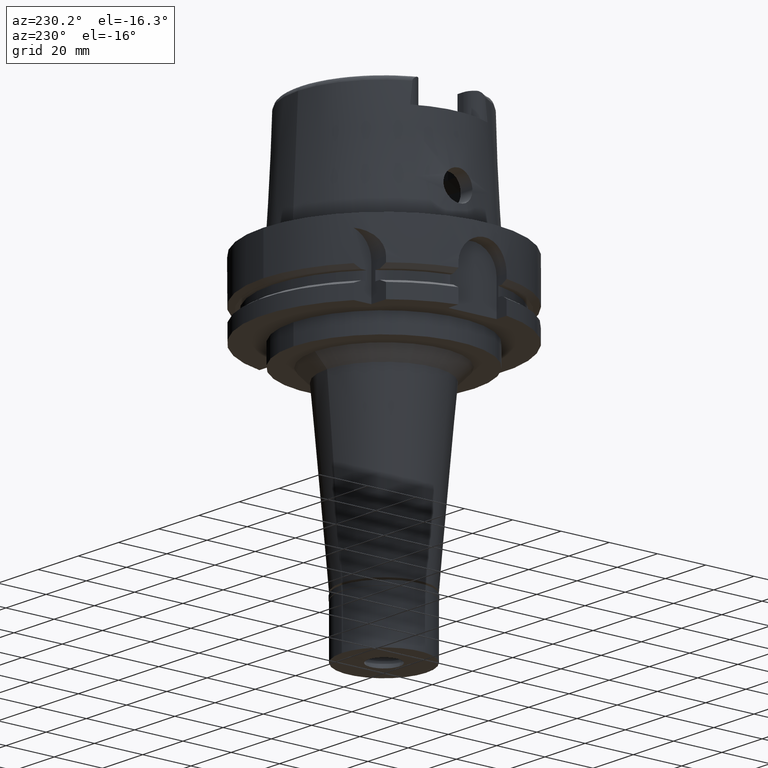
[diagram: clean part render]
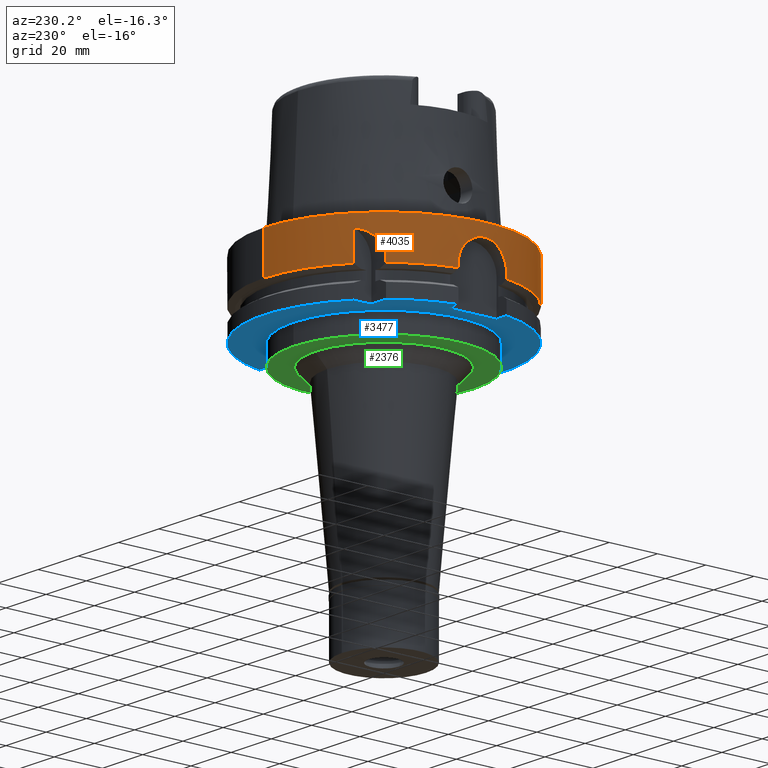
[diagram: same view with three faces highlighted in distinct colors, each labeled with its STEP entity id]
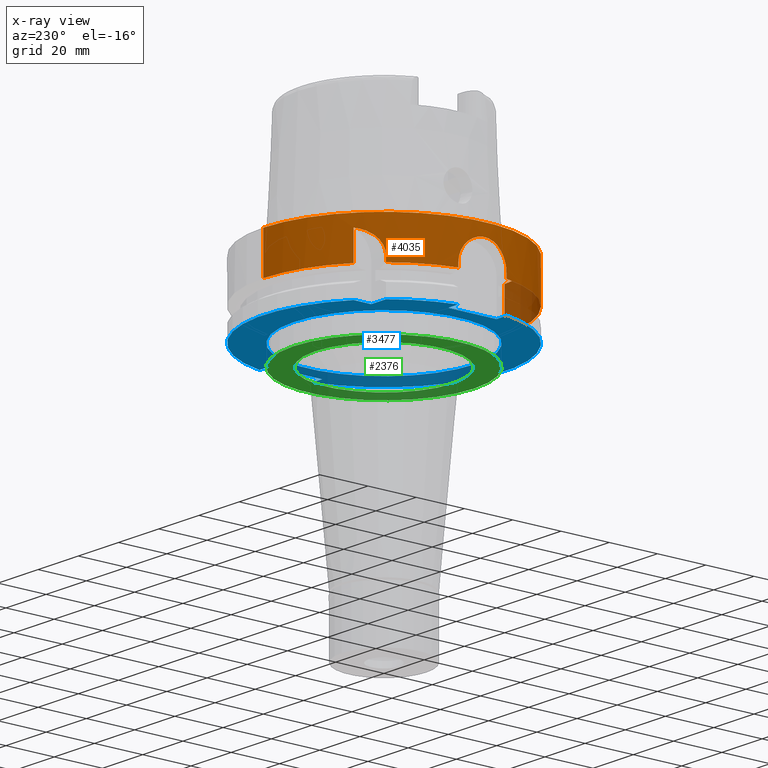
[diagram: x-ray of the same camera — body ghosted, the three highlighted faces saturated]
A machine part, auxiliary view with three faces highlighted in distinct colors.
The next image is the same camera in x-ray (body ghosted, the three faces saturated) — at least one of them is partly hidden behind the body in this view.
Their STEP definitions:

[orange] entity #4035 — the highlighted cylindrical surface (partial cylindrical patch) has radius 50 mm, axis along (0, 0, 1).
#30 = CARTESIAN_POINT ( 'NONE',  ( 0.0000000000000000000, 0.0000000000000000000, -137.2150000000000034 ) ) ;
#61 = CARTESIAN_POINT ( 'NONE',  ( -31.50000000000000000, 38.82975663071000128, -5.000000000003000267 ) ) ;
#62 = ORIENTED_EDGE ( 'NONE', *, *, #2796, .T. ) ;
#93 = CARTESIAN_POINT ( 'NONE',  ( -48.98979485565999425, -10.00000000000000000, -16.75240473580999989 ) ) ;
#100 = DIRECTION ( 'NONE',  ( -0.7765951326141738997, 0.6299999999999789102, 0.0000000000000000000 ) ) ;
#101 = CARTESIAN_POINT ( 'NONE',  ( -49.75276536321838705, -4.996883166516302488, -6.312905539887633033 ) ) ;
#103 = LINE ( 'NONE', #4772, #438 ) ;
#133 = DIRECTION ( 'NONE',  ( 0.0000000000000000000, 2.969006079282000197E-14, -1.000000000000000000 ) ) ;
#163 = CARTESIAN_POINT ( 'NONE',  ( -49.11376107037471428, -9.373077456005475483, -11.49978243499020358 ) ) ;
#214 = CARTESIAN_POINT ( 'NONE',  ( -49.94990226526126520, -2.260620444711866295, -5.253370164206655701 ) ) ;
#215 = CARTESIAN_POINT ( 'NONE',  ( -38.56426017670611373, 31.82455753698108936, -12.10452878447413383 ) ) ;
#249 = CARTESIAN_POINT ( 'NONE',  ( 0.0000000000000000000, 50.00000000000000000, 7.579122514774000189E-14 ) ) ;
#274 = CARTESIAN_POINT ( 'NONE',  ( -38.82975663071000128, 31.50000000000000000, -14.63689785921000031 ) ) ;
#297 = EDGE_CURVE ( 'NONE', #4911, #5580, #684, .T. ) ;
#313 = ORIENTED_EDGE ( 'NONE', *, *, #1362, .T. ) ;
#325 = CARTESIAN_POINT ( 'NONE',  ( -35.96048111892914534, 34.74089583048504437, -7.262033769481476497 ) ) ;
#366 = CARTESIAN_POINT ( 'NONE',  ( 0.0000000000000000000, -50.00000000000000000, 1.136868377215999875E-13 ) ) ;
#426 = CARTESIAN_POINT ( 'NONE',  ( -48.98979485565999425, 10.00000000000000000, -15.00000000000000000 ) ) ;
#438 = VECTOR ( 'NONE', #133, 1000.000000000000000 ) ;
#554 = CARTESIAN_POINT ( 'NONE',  ( -49.62992459583361438, -6.097301639180092714, -7.046390843773545853 ) ) ;
#581 = CARTESIAN_POINT ( 'NONE',  ( -49.80800700751090204, -4.419787306502763968, -6.005617750956002254 ) ) ;
#616 = CARTESIAN_POINT ( 'NONE',  ( -48.98979485565999425, -10.00000000000000000, -15.00000000000000000 ) ) ;
#638 = CARTESIAN_POINT ( 'NONE',  ( -49.63038059468560448, 6.093458218088183109, -7.043598467442531152 ) ) ;
#664 = CARTESIAN_POINT ( 'NONE',  ( -49.89840428057968325, -3.201080346780630581, -5.520506154842074409 ) ) ;
#665 = CARTESIAN_POINT ( 'NONE',  ( -37.41496551686595495, 33.16812239919718763, -9.106354249916776666 ) ) ;
#684 = B_SPLINE_CURVE_WITH_KNOTS ( 'NONE', 3,
 ( #2830, #1518, #3221, #1399, #2274, #5278, #3581, #3159, #4950, #3250, #2771, #4890, #638, #2801, #2709, #2396, #4515, #3672, #2364, #1006, #4543, #1911, #1462, #214, #4068, #664, #4002, #581, #101, #554, #3124, #3188, #5311, #1940, #4920, #163, #1066, #1035, #4490, #4859, #2304, #1822 ),
 .UNSPECIFIED., .F., .F.,
 ( 4, 2, 2, 2, 2, 2, 2, 2, 2, 2, 2, 2, 2, 2, 2, 2, 2, 2, 2, 2, 4 ),
 ( 0.0000000000000000000, 0.03124999999999997918, 0.06249999999999995837, 0.1250000000000000278, 0.1875000000000000833, 0.2500000000000001665, 0.3125000000000002220, 0.3437500000000002220, 0.3750000000000001665, 0.4375000000000001665, 0.5000000000000001110, 0.5625000000000001110, 0.5937500000000000000, 0.6250000000000000000, 0.6875000000000001110, 0.7500000000000001110, 0.8125000000000002220, 0.8750000000000003331, 0.9062500000000003331, 0.9375000000000002220, 1.000000000000000000 ),
 .UNSPECIFIED. ) ;
#731 = CARTESIAN_POINT ( 'NONE',  ( -31.50000000000000000, 38.82975663071000128, -5.000000000003000267 ) ) ;
#781 = LINE ( 'NONE', #731, #4612 ) ;
#809 = CIRCLE ( 'NONE', #4891, 50.00000000000000000 ) ;
#884 = CARTESIAN_POINT ( 'NONE',  ( -48.98979485565999425, 10.00000000000000000, -16.75240473580999989 ) ) ;
#899 = DIRECTION ( 'NONE',  ( 0.0000000000000000000, 1.000000000000000000, 0.0000000000000000000 ) ) ;
#939 = CARTESIAN_POINT ( 'NONE',  ( 0.0000000000000000000, -50.00000000000000000, -16.75240473580999989 ) ) ;
#969 = ORIENTED_EDGE ( 'NONE', *, *, #1765, .T. ) ;
#1006 = CARTESIAN_POINT ( 'NONE',  ( -49.98728101266075186, 1.296887978462247792, -5.063028898146675338 ) ) ;
#1035 = CARTESIAN_POINT ( 'NONE',  ( -49.05607990732512746, -9.670065645164941159, -12.43135436702997865 ) ) ;
#1055 = ORIENTED_EDGE ( 'NONE', *, *, #1324, .F. ) ;
#1066 = CARTESIAN_POINT ( 'NONE',  ( -49.09271152182150644, -9.482342584555794929, -11.80743786670822892 ) ) ;
#1067 = CARTESIAN_POINT ( 'NONE',  ( -36.69561725865232660, 33.96633515268312209, -8.038036006359032370 ) ) ;
#1096 = CARTESIAN_POINT ( 'NONE',  ( -38.82975663071001549, 31.49999999999999289, -14.13560493433362986 ) ) ;
#1120 = CARTESIAN_POINT ( 'NONE',  ( -38.66988779819151745, 31.69622724126822888, -12.64992304906581921 ) ) ;
#1168 = DIRECTION ( 'NONE',  ( 0.0000000000000000000, -1.000000000000000000, 0.0000000000000000000 ) ) ;
#1176 = CARTESIAN_POINT ( 'NONE',  ( -37.88599241306716436, 32.62939715868098745, -10.01319652236814939 ) ) ;
#1293 = DIRECTION ( 'NONE',  ( 3.166955095344913800E-07, 3.903884141554897929E-07, 0.9999999999998735456 ) ) ;
#1324 = EDGE_CURVE ( 'NONE', #5219, #4051, #2399, .T. ) ;
#1362 = EDGE_CURVE ( 'NONE', #3621, #4967, #2456, .T. ) ;
#1399 = CARTESIAN_POINT ( 'NONE',  ( -49.00578942432678531, 9.921372535861255670, -13.70665978530594131 ) ) ;
#1462 = CARTESIAN_POINT ( 'NONE',  ( -49.98727915147451739, -1.297878056431744698, -5.063039952322239579 ) ) ;
#1492 = CARTESIAN_POINT ( 'NONE',  ( -37.31212436315725256, 33.28370959263945394, -8.936645658776942724 ) ) ;
#1508 = VERTEX_POINT ( 'NONE', #884 ) ;
#1518 = CARTESIAN_POINT ( 'NONE',  ( -48.98979485566344039, 10.00000000000068212, -14.67491818838167283 ) ) ;
#1520 = CARTESIAN_POINT ( 'NONE',  ( -35.22322138154279969, 35.48702976941962817, -6.646516917485759457 ) ) ;
#1550 = CARTESIAN_POINT ( 'NONE',  ( -38.49419861245505103, 31.90919322588862883, -11.80539807600822755 ) ) ;
#1573 = CARTESIAN_POINT ( 'NONE',  ( -35.17537491079463052, 35.53442570974966941, -6.611162841490493491 ) ) ;
#1594 = CARTESIAN_POINT ( 'NONE',  ( -31.50000355958999876, 38.82975374304999860, -16.75239179145000179 ) ) ;
#1609 = VECTOR ( 'NONE', #1815, 1000.000000000000000 ) ;
#1663 = CIRCLE ( 'NONE', #3119, 50.00000000000000000 ) ;
#1764 = VECTOR ( 'NONE', #2547, 1000.000000000000000 ) ;
#1765 = EDGE_CURVE ( 'NONE', #4967, #2383, #1663, .T. ) ;
#1784 = CARTESIAN_POINT ( 'NONE',  ( -38.82975730067999365, 31.49999917413000361, -16.75240773889999701 ) ) ;
#1805 = ORIENTED_EDGE ( 'NONE', *, *, #2061, .T. ) ;
#1815 = DIRECTION ( 'NONE',  ( 3.933032361779000221E-13, -2.534170336197999844E-14, 1.000000000000000000 ) ) ;
#1822 = CARTESIAN_POINT ( 'NONE',  ( -48.98979485565999425, -10.00000000000000000, -15.00000000000000000 ) ) ;
#1877 = CARTESIAN_POINT ( 'NONE',  ( -48.98979485565999425, 10.00000000000000000, -15.00000000000000000 ) ) ;
#1911 = CARTESIAN_POINT ( 'NONE',  ( -49.99998093188954584, -0.6534672293763490458, -5.000092580354932537 ) ) ;
#1940 = CARTESIAN_POINT ( 'NONE',  ( -49.24031672210695376, -8.690732600166523270, -10.00953481943133205 ) ) ;
#1943 = CARTESIAN_POINT ( 'NONE',  ( -37.78098767313002782, 32.75102575319503018, -9.787062043289939339 ) ) ;
#1966 = EDGE_CURVE ( 'NONE', #4911, #1508, #2926, .T. ) ;
#2004 = CARTESIAN_POINT ( 'NONE',  ( -37.52307995457977086, 33.04593879523919497, -9.292993280808079959 ) ) ;
#2057 = CARTESIAN_POINT ( 'NONE',  ( -37.31942905272651956, 33.27551862753188061, -8.948474605492968692 ) ) ;
#2061 = EDGE_CURVE ( 'NONE', #2434, #2734, #5481, .T. ) ;
#2108 = ORIENTED_EDGE ( 'NONE', *, *, #4685, .F. ) ;
#2176 = FACE_OUTER_BOUND ( 'NONE', #2967, .T. ) ;
#2230 = CYLINDRICAL_SURFACE ( 'NONE', #3440, 50.00000000000000000 ) ;
#2274 = CARTESIAN_POINT ( 'NONE',  ( -49.01530539145205267, 9.874410711561390386, -13.38689759170601690 ) ) ;
#2304 = CARTESIAN_POINT ( 'NONE',  ( -48.98979485566344749, -10.00000000000062528, -14.35040057394133939 ) ) ;
#2314 = AXIS2_PLACEMENT_3D ( 'NONE', #3158, #4429, #100 ) ;
#2331 = CARTESIAN_POINT ( 'NONE',  ( 0.0000000000000000000, 0.0000000000000000000, -16.75240473580999989 ) ) ;
#2339 = VECTOR ( 'NONE', #1293, 1000.000000000000227 ) ;
#2364 = CARTESIAN_POINT ( 'NONE',  ( -49.93766217927382911, 2.576834790225643879, -5.315698971769330150 ) ) ;
#2383 = VERTEX_POINT ( 'NONE', #1594 ) ;
#2396 = CARTESIAN_POINT ( 'NONE',  ( -49.80599999653138354, 4.409852763244796137, -6.018768689394686788 ) ) ;
#2399 = B_SPLINE_CURVE_WITH_KNOTS ( 'NONE', 3,
 ( #274, #1096, #4517, #3224, #1120, #4095, #215, #3336, #1550, #5062, #5483, #3782, #4953, #1176, #1943, #2428, #2004, #665, #3675, #5400, #2057, #1492, #5427, #1067, #3282, #325, #2803, #2885, #3728, #1520, #1573, #2909, #3308, #3253, #4210, #4129, #5009 ),
 .UNSPECIFIED., .F., .F.,
 ( 4, 2, 2, 1, 1, 2, 2, 2, 2, 1, 1, 1, 2, 2, 2, 2, 1, 1, 1, 1, 2, 2, 4 ),
 ( 0.0000000000000000000, 0.1249999999999876765, 0.1874999999999813760, 0.2187499999999780731, 0.2343749999999762135, 0.2421874999999752698, 0.2499999999999743261, 0.3749999999999562572, 0.4374999999999474309, 0.4687499999999430456, 0.4843749999999407141, 0.4921874999999398814, 0.4960937499999398259, 0.4999999999999397704, 0.6249999999999515943, 0.6874999999999578115, 0.7187499999999613642, 0.7343749999999634737, 0.7421874999999649170, 0.7460937499999652500, 0.7480468749999651390, 0.7499999999999649170, 1.000000000000000000 ),
 .UNSPECIFIED. ) ;
#2428 = CARTESIAN_POINT ( 'NONE',  ( -37.61111081825762170, 32.94561128215605805, -9.456280317141889213 ) ) ;
#2434 = VERTEX_POINT ( 'NONE', #5143 ) ;
#2444 = CARTESIAN_POINT ( 'NONE',  ( 0.0000000000000000000, 50.00000000000000000, 7.579122514774000189E-14 ) ) ;
#2456 = LINE ( 'NONE', #249, #4206 ) ;
#2463 = DIRECTION ( 'NONE',  ( -3.028823767049074487E-07, -2.457085509676059455E-07, -0.9999999999999239497 ) ) ;
#2542 = ORIENTED_EDGE ( 'NONE', *, *, #5102, .F. ) ;
#2547 = DIRECTION ( 'NONE',  ( -4.014125812537999910E-13, -2.635537149646000036E-14, -1.000000000000000000 ) ) ;
#2549 = ORIENTED_EDGE ( 'NONE', *, *, #4141, .F. ) ;
#2709 = CARTESIAN_POINT ( 'NONE',  ( -49.75138076878725002, 4.988441504831846451, -6.326833838032925428 ) ) ;
#2734 = VERTEX_POINT ( 'NONE', #939 ) ;
#2771 = CARTESIAN_POINT ( 'NONE',  ( -49.43052048831371792, 7.539695048881876360, -8.397874753138664161 ) ) ;
#2796 = EDGE_CURVE ( 'NONE', #3504, #1508, #3232, .T. ) ;
#2801 = CARTESIAN_POINT ( 'NONE',  ( -49.72223162464445068, 5.270285573139288360, -6.495242745513932547 ) ) ;
#2803 = CARTESIAN_POINT ( 'NONE',  ( -35.65905782238287003, 35.04933054555394989, -6.994425028472744721 ) ) ;
#2830 = CARTESIAN_POINT ( 'NONE',  ( -48.98979485565999425, 10.00000000000000000, -15.00000000000000000 ) ) ;
#2857 = DIRECTION ( 'NONE',  ( 0.0000000000000000000, -2.969006079282000197E-14, -1.000000000000000000 ) ) ;
#2885 = CARTESIAN_POINT ( 'NONE',  ( -35.50466799637401039, 35.20597899941414965, -6.864031101713981009 ) ) ;
#2909 = CARTESIAN_POINT ( 'NONE',  ( -35.15478307318331019, 35.55478812674000721, -6.596093977490991023 ) ) ;
#2926 = LINE ( 'NONE', #426, #1764 ) ;
#2948 = DIRECTION ( 'NONE',  ( 0.0000000000000000000, 0.0000000000000000000, -1.000000000000000000 ) ) ;
#2967 = EDGE_LOOP ( 'NONE', ( #1055, #2542, #62, #5026, #3037, #2108, #1805, #4469, #4060, #313, #969, #2549 ) ) ;
#3037 = ORIENTED_EDGE ( 'NONE', *, *, #297, .T. ) ;
#3062 = LINE ( 'NONE', #1784, #2339 ) ;
#3119 = AXIS2_PLACEMENT_3D ( 'NONE', #2331, #4540, #4621 ) ;
#3124 = CARTESIAN_POINT ( 'NONE',  ( -49.56400207330066365, -6.605564745177894714, -7.463225048223665503 ) ) ;
#3158 = CARTESIAN_POINT ( 'NONE',  ( 0.0000000000000000000, 0.0000000000000000000, -16.75240473580999989 ) ) ;
#3159 = CARTESIAN_POINT ( 'NONE',  ( -49.18452341107577297, 8.997079902978031285, -10.58577461072752612 ) ) ;
#3188 = CARTESIAN_POINT ( 'NONE',  ( -49.43014710839021575, -7.542171038089164448, -8.400588023946333749 ) ) ;
#3221 = CARTESIAN_POINT ( 'NONE',  ( -48.99301193889542105, 9.984278203858901080, -14.35123378311920206 ) ) ;
#3224 = CARTESIAN_POINT ( 'NONE',  ( -38.70795180593402307, 31.64970871925606843, -12.89504392163189905 ) ) ;
#3232 = CIRCLE ( 'NONE', #2314, 50.00000000000000711 ) ;
#3250 = CARTESIAN_POINT ( 'NONE',  ( -49.36413913953673216, 7.957355691185431290, -8.907671155079407654 ) ) ;
#3253 = CARTESIAN_POINT ( 'NONE',  ( -35.13510345882872343, 35.57423429622866706, -6.581750866330432714 ) ) ;
#3276 = CARTESIAN_POINT ( 'NONE',  ( 0.0000000000000000000, 50.00000000000000000, -16.75240473580999989 ) ) ;
#3282 = CARTESIAN_POINT ( 'NONE',  ( -36.15162150933139884, 34.54175684996990725, -7.449539289385000984 ) ) ;
#3308 = CARTESIAN_POINT ( 'NONE',  ( -35.14103602426671813, 35.56837410093927332, -6.586066506125325404 ) ) ;
#3336 = CARTESIAN_POINT ( 'NONE',  ( -38.51596646688280146, 31.88293254882115235, -11.89485916806663646 ) ) ;
#3395 = AXIS2_PLACEMENT_3D ( 'NONE', #5326, #5297, #3535 ) ;
#3440 = AXIS2_PLACEMENT_3D ( 'NONE', #30, #3481, #899 ) ;
#3481 = DIRECTION ( 'NONE',  ( 0.0000000000000000000, 0.0000000000000000000, 1.000000000000000000 ) ) ;
#3504 = VERTEX_POINT ( 'NONE', #3601 ) ;
#3535 = DIRECTION ( 'NONE',  ( -0.9797958971132723072, -0.1999999999999946265, 0.0000000000000000000 ) ) ;
#3581 = CARTESIAN_POINT ( 'NONE',  ( -49.09037231590409078, 9.497375207979882106, -11.80165523366165914 ) ) ;
#3601 = CARTESIAN_POINT ( 'NONE',  ( -38.82975730067999365, 31.49999917413000361, -16.75240773889999701 ) ) ;
#3621 = VERTEX_POINT ( 'NONE', #2444 ) ;
#3672 = CARTESIAN_POINT ( 'NONE',  ( -49.90100946690886730, 3.202912906235395596, -5.504239566277596474 ) ) ;
#3675 = CARTESIAN_POINT ( 'NONE',  ( -37.35955535715333298, 33.23047528676581663, -9.014022007641489864 ) ) ;
#3728 = CARTESIAN_POINT ( 'NONE',  ( -35.31810972165946083, 35.39270779696074243, -6.717996978859696711 ) ) ;
#3782 = CARTESIAN_POINT ( 'NONE',  ( -38.33679764295252568, 32.09873448340078994, -11.18913025709076692 ) ) ;
#3794 = EDGE_CURVE ( 'NONE', #5030, #3621, #809, .T. ) ;
#3968 = LINE ( 'NONE', #93, #1609 ) ;
#4002 = CARTESIAN_POINT ( 'NONE',  ( -49.87775717179351176, -3.507472022033292003, -5.629572704046588605 ) ) ;
#4035 = ADVANCED_FACE ( 'NONE', ( #2176 ), #2230, .T. ) ;
#4051 = VERTEX_POINT ( 'NONE', #61 ) ;
#4060 = ORIENTED_EDGE ( 'NONE', *, *, #3794, .T. ) ;
#4068 = CARTESIAN_POINT ( 'NONE',  ( -49.93451952669639837, -2.577096190035413237, -5.332174723918328141 ) ) ;
#4095 = CARTESIAN_POINT ( 'NONE',  ( -38.60137258425502438, 31.77952775864176260, -12.28574352458336882 ) ) ;
#4129 = CARTESIAN_POINT ( 'NONE',  ( -32.91424143005966840, 37.68247658281653401, -5.317894511844511563 ) ) ;
#4141 = EDGE_CURVE ( 'NONE', #4051, #2383, #781, .T. ) ;
#4206 = VECTOR ( 'NONE', #2857, 1000.000000000000000 ) ;
#4210 = CARTESIAN_POINT ( 'NONE',  ( -34.12332817658851525, 36.57299057660049613, -5.848493596766739522 ) ) ;
#4429 = DIRECTION ( 'NONE',  ( 0.0000000000000000000, 0.0000000000000000000, 1.000000000000000000 ) ) ;
#4444 = CARTESIAN_POINT ( 'NONE',  ( -38.82975663071000128, 31.50000000000000000, -14.63689785921000031 ) ) ;
#4469 = ORIENTED_EDGE ( 'NONE', *, *, #5317, .F. ) ;
#4490 = CARTESIAN_POINT ( 'NONE',  ( -49.04044174330508810, -9.748803909433229720, -12.74903880993627148 ) ) ;
#4515 = CARTESIAN_POINT ( 'NONE',  ( -49.83155974007455313, 4.111934228163772964, -5.878629027224209658 ) ) ;
#4517 = CARTESIAN_POINT ( 'NONE',  ( -38.79930542451601383, 31.53776370975334942, -13.63538803962897106 ) ) ;
#4540 = DIRECTION ( 'NONE',  ( 0.0000000000000000000, 0.0000000000000000000, 1.000000000000000000 ) ) ;
#4543 = CARTESIAN_POINT ( 'NONE',  ( -50.00001902544182286, 0.6505459742739087003, -4.999907632988253248 ) ) ;
#4612 = VECTOR ( 'NONE', #2463, 1000.000000000000114 ) ;
#4621 = DIRECTION ( 'NONE',  ( 0.0000000000000000000, 1.000000000000000000, 0.0000000000000000000 ) ) ;
#4685 = EDGE_CURVE ( 'NONE', #2434, #5580, #3968, .T. ) ;
#4772 = CARTESIAN_POINT ( 'NONE',  ( 0.0000000000000000000, -50.00000000000000000, 7.579122514774000189E-14 ) ) ;
#4859 = CARTESIAN_POINT ( 'NONE',  ( -49.00272814445449399, -9.937255686204508720, -13.70646034816807735 ) ) ;
#4890 = CARTESIAN_POINT ( 'NONE',  ( -49.56420845736312941, 6.603983432049820301, -7.461919457028536762 ) ) ;
#4891 = AXIS2_PLACEMENT_3D ( 'NONE', #5095, #2948, #1168 ) ;
#4911 = VERTEX_POINT ( 'NONE', #1877 ) ;
#4920 = CARTESIAN_POINT ( 'NONE',  ( -49.18418647186486226, -8.998901655055210114, -10.58972459516462017 ) ) ;
#4950 = CARTESIAN_POINT ( 'NONE',  ( -49.24057558575066906, 8.689272614411178708, -10.00695910822739698 ) ) ;
#4953 = CARTESIAN_POINT ( 'NONE',  ( -38.17626714294511459, 32.29032260651442243, -10.70667170912137856 ) ) ;
#4967 = VERTEX_POINT ( 'NONE', #3276 ) ;
#5009 = CARTESIAN_POINT ( 'NONE',  ( -31.50000000000000000, 38.82975663071000128, -5.000000000003000267 ) ) ;
#5026 = ORIENTED_EDGE ( 'NONE', *, *, #1966, .F. ) ;
#5030 = VERTEX_POINT ( 'NONE', #366 ) ;
#5062 = CARTESIAN_POINT ( 'NONE',  ( -38.47944880945484414, 31.92697554184078967, -11.74584816678029497 ) ) ;
#5095 = CARTESIAN_POINT ( 'NONE',  ( 0.0000000000000000000, 0.0000000000000000000, 1.136868377215999875E-13 ) ) ;
#5102 = EDGE_CURVE ( 'NONE', #3504, #5219, #3062, .T. ) ;
#5143 = CARTESIAN_POINT ( 'NONE',  ( -48.98979485565999425, -10.00000000000000000, -16.75240473580999989 ) ) ;
#5219 = VERTEX_POINT ( 'NONE', #4444 ) ;
#5278 = CARTESIAN_POINT ( 'NONE',  ( -49.05322590844922104, 9.684917451701169355, -12.42503883626860173 ) ) ;
#5297 = DIRECTION ( 'NONE',  ( 0.0000000000000000000, 0.0000000000000000000, 1.000000000000000000 ) ) ;
#5311 = CARTESIAN_POINT ( 'NONE',  ( -49.36385111810889725, -7.959134802865315272, -8.910023326119071996 ) ) ;
#5317 = EDGE_CURVE ( 'NONE', #5030, #2734, #103, .T. ) ;
#5326 = CARTESIAN_POINT ( 'NONE',  ( 0.0000000000000000000, 0.0000000000000000000, -16.75240473580999989 ) ) ;
#5400 = CARTESIAN_POINT ( 'NONE',  ( -37.33551822995026725, 33.25746574856758997, -8.974664900962231684 ) ) ;
#5427 = CARTESIAN_POINT ( 'NONE',  ( -37.01904719568514679, 33.61208051690528720, -8.465090197389034898 ) ) ;
#5481 = CIRCLE ( 'NONE', #3395, 49.99999999999997868 ) ;
#5483 = CARTESIAN_POINT ( 'NONE',  ( -38.47231368847138810, 31.93557238706259227, -11.71751733938996765 ) ) ;
#5580 = VERTEX_POINT ( 'NONE', #616 ) ;

[blue] entity #3477 — the highlighted planar face has unit normal (0, 0, 1).
#13 = CARTESIAN_POINT ( 'NONE',  ( -31.50000000000000000, 31.50000000000000000, -29.00000000000000000 ) ) ;
#47 = CIRCLE ( 'NONE', #3387, 50.00000000000000000 ) ;
#91 = ORIENTED_EDGE ( 'NONE', *, *, #1738, .T. ) ;
#92 = CARTESIAN_POINT ( 'NONE',  ( -31.50000000000000000, 31.50000000000000000, -29.00000000000000000 ) ) ;
#232 = VECTOR ( 'NONE', #3544, 1000.000000000000000 ) ;
#289 = VERTEX_POINT ( 'NONE', #4430 ) ;
#316 = VERTEX_POINT ( 'NONE', #5398 ) ;
#329 = LINE ( 'NONE', #2059, #2117 ) ;
#352 = DIRECTION ( 'NONE',  ( 0.0000000000000000000, 0.0000000000000000000, 1.000000000000000000 ) ) ;
#392 = AXIS2_PLACEMENT_3D ( 'NONE', #544, #3992, #3241 ) ;
#544 = CARTESIAN_POINT ( 'NONE',  ( 0.0000000000000000000, 0.0000000000000000000, -29.00000000000000000 ) ) ;
#548 = EDGE_CURVE ( 'NONE', #4354, #1787, #4852, .T. ) ;
#553 = CARTESIAN_POINT ( 'NONE',  ( -44.00000000000000000, -10.00000000000000000, -29.00000000000000000 ) ) ;
#579 = LINE ( 'NONE', #553, #5279 ) ;
#658 = ORIENTED_EDGE ( 'NONE', *, *, #548, .F. ) ;
#672 = DIRECTION ( 'NONE',  ( 0.0000000000000000000, 1.000000000000000000, 0.0000000000000000000 ) ) ;
#711 = ORIENTED_EDGE ( 'NONE', *, *, #4416, .F. ) ;
#754 = CIRCLE ( 'NONE', #1941, 50.00000000000000000 ) ;
#847 = EDGE_CURVE ( 'NONE', #289, #1477, #893, .T. ) ;
#893 = LINE ( 'NONE', #4377, #1600 ) ;
#909 = ORIENTED_EDGE ( 'NONE', *, *, #4247, .T. ) ;
#948 = EDGE_CURVE ( 'NONE', #1787, #4354, #4289, .T. ) ;
#959 = EDGE_CURVE ( 'NONE', #4338, #2148, #329, .T. ) ;
#990 = VECTOR ( 'NONE', #1781, 1000.000000000000000 ) ;
#1015 = EDGE_CURVE ( 'NONE', #1477, #316, #47, .T. ) ;
#1058 = ORIENTED_EDGE ( 'NONE', *, *, #3721, .F. ) ;
#1069 = EDGE_CURVE ( 'NONE', #1413, #1969, #1384, .T. ) ;
#1187 = DIRECTION ( 'NONE',  ( 0.0000000000000000000, 0.0000000000000000000, 1.000000000000000000 ) ) ;
#1213 = AXIS2_PLACEMENT_3D ( 'NONE', #3761, #2459, #672 ) ;
#1254 = CARTESIAN_POINT ( 'NONE',  ( 44.00000000000000000, -11.00000000000000000, -29.00000000000000000 ) ) ;
#1310 = VERTEX_POINT ( 'NONE', #4185 ) ;
#1340 = DIRECTION ( 'NONE',  ( 1.000000000000000000, 1.711257052401000108E-14, 0.0000000000000000000 ) ) ;
#1384 = LINE ( 'NONE', #1254, #3665 ) ;
#1390 = FACE_OUTER_BOUND ( 'NONE', #5066, .T. ) ;
#1413 = VERTEX_POINT ( 'NONE', #3809 ) ;
#1477 = VERTEX_POINT ( 'NONE', #2502 ) ;
#1496 = DIRECTION ( 'NONE',  ( 0.0000000000000000000, -1.000000000000000000, 0.0000000000000000000 ) ) ;
#1600 = VECTOR ( 'NONE', #3025, 1000.000000000000000 ) ;
#1615 = CARTESIAN_POINT ( 'NONE',  ( 0.0000000000000000000, 0.0000000000000000000, -29.00000000000000000 ) ) ;
#1685 = ORIENTED_EDGE ( 'NONE', *, *, #1015, .F. ) ;
#1724 = CARTESIAN_POINT ( 'NONE',  ( 48.77499359303000404, -11.00000000000000000, -29.00000000000000000 ) ) ;
#1728 = CARTESIAN_POINT ( 'NONE',  ( 0.0000000000000000000, -37.50000000000000000, -29.00000000000000000 ) ) ;
#1738 = EDGE_CURVE ( 'NONE', #3444, #316, #2677, .T. ) ;
#1769 = DIRECTION ( 'NONE',  ( 0.0000000000000000000, 1.000000000000000000, 0.0000000000000000000 ) ) ;
#1781 = DIRECTION ( 'NONE',  ( -1.000000000000000000, 4.627973610177000155E-14, 0.0000000000000000000 ) ) ;
#1787 = VERTEX_POINT ( 'NONE', #3638 ) ;
#1941 = AXIS2_PLACEMENT_3D ( 'NONE', #1615, #1187, #3349 ) ;
#1969 = VERTEX_POINT ( 'NONE', #1724 ) ;
#2059 = CARTESIAN_POINT ( 'NONE',  ( -44.00000000000000000, -10.00000000000000000, -29.00000000000000000 ) ) ;
#2117 = VECTOR ( 'NONE', #3785, 1000.000000000000000 ) ;
#2148 = VERTEX_POINT ( 'NONE', #4716 ) ;
#2273 = DIRECTION ( 'NONE',  ( -1.000000000000000000, -4.627973610177000155E-14, 0.0000000000000000000 ) ) ;
#2446 = ORIENTED_EDGE ( 'NONE', *, *, #959, .T. ) ;
#2459 = DIRECTION ( 'NONE',  ( 0.0000000000000000000, 0.0000000000000000000, -1.000000000000000000 ) ) ;
#2502 = CARTESIAN_POINT ( 'NONE',  ( 48.77499359303000404, 11.00000000000000000, -29.00000000000000000 ) ) ;
#2522 = LINE ( 'NONE', #13, #2751 ) ;
#2575 = DIRECTION ( 'NONE',  ( 0.0000000000000000000, 0.0000000000000000000, -1.000000000000000000 ) ) ;
#2677 = LINE ( 'NONE', #4400, #232 ) ;
#2700 = FACE_BOUND ( 'NONE', #3860, .T. ) ;
#2751 = VECTOR ( 'NONE', #3804, 1000.000000000000000 ) ;
#2906 = AXIS2_PLACEMENT_3D ( 'NONE', #3011, #4162, #5456 ) ;
#2918 = EDGE_CURVE ( 'NONE', #4338, #5414, #579, .T. ) ;
#3011 = CARTESIAN_POINT ( 'NONE',  ( 0.0000000000000000000, 0.0000000000000000000, -29.00000000000000000 ) ) ;
#3025 = DIRECTION ( 'NONE',  ( 1.000000000000000000, -1.785659532940000023E-14, 0.0000000000000000000 ) ) ;
#3068 = EDGE_CURVE ( 'NONE', #3444, #1310, #2522, .T. ) ;
#3192 = CARTESIAN_POINT ( 'NONE',  ( 44.00000000000000000, 11.00000000000000000, -29.00000000000000000 ) ) ;
#3241 = DIRECTION ( 'NONE',  ( 1.000000000000000000, 0.0000000000000000000, 0.0000000000000000000 ) ) ;
#3349 = DIRECTION ( 'NONE',  ( 0.0000000000000000000, -1.000000000000000000, 0.0000000000000000000 ) ) ;
#3387 = AXIS2_PLACEMENT_3D ( 'NONE', #4238, #352, #1769 ) ;
#3425 = CARTESIAN_POINT ( 'NONE',  ( 0.0000000000000000000, 0.0000000000000000000, -29.00000000000000000 ) ) ;
#3444 = VERTEX_POINT ( 'NONE', #92 ) ;
#3453 = CARTESIAN_POINT ( 'NONE',  ( -44.00000000000000000, 10.00000000000000000, -29.00000000000000000 ) ) ;
#3477 = ADVANCED_FACE ( 'NONE', ( #1390, #2700 ), #4421, .F. ) ;
#3544 = DIRECTION ( 'NONE',  ( 4.798503851105999980E-14, 1.000000000000000000, 0.0000000000000000000 ) ) ;
#3638 = CARTESIAN_POINT ( 'NONE',  ( 0.0000000000000000000, 37.50000000000000000, -29.00000000000000000 ) ) ;
#3665 = VECTOR ( 'NONE', #1340, 1000.000000000000000 ) ;
#3705 = CARTESIAN_POINT ( 'NONE',  ( -44.00000000000000000, -10.00000000000000000, -29.00000000000000000 ) ) ;
#3721 = EDGE_CURVE ( 'NONE', #5414, #1969, #754, .T. ) ;
#3761 = CARTESIAN_POINT ( 'NONE',  ( 0.0000000000000000000, 0.0000000000000000000, -29.00000000000000000 ) ) ;
#3785 = DIRECTION ( 'NONE',  ( 0.0000000000000000000, 1.000000000000000000, 0.0000000000000000000 ) ) ;
#3804 = DIRECTION ( 'NONE',  ( -1.000000000000000000, -4.798503851105999980E-14, 0.0000000000000000000 ) ) ;
#3809 = CARTESIAN_POINT ( 'NONE',  ( 44.00000000000000000, -11.00000000000000000, -29.00000000000000000 ) ) ;
#3852 = AXIS2_PLACEMENT_3D ( 'NONE', #3425, #2575, #4300 ) ;
#3860 = EDGE_LOOP ( 'NONE', ( #5016, #658 ) ) ;
#3866 = ORIENTED_EDGE ( 'NONE', *, *, #1069, .T. ) ;
#3902 = EDGE_CURVE ( 'NONE', #2148, #3996, #4838, .T. ) ;
#3992 = DIRECTION ( 'NONE',  ( 0.0000000000000000000, 0.0000000000000000000, 1.000000000000000000 ) ) ;
#3996 = VERTEX_POINT ( 'NONE', #4329 ) ;
#4162 = DIRECTION ( 'NONE',  ( 0.0000000000000000000, 0.0000000000000000000, 1.000000000000000000 ) ) ;
#4185 = CARTESIAN_POINT ( 'NONE',  ( -38.82975663071000128, 31.50000000000000000, -29.00000000000000000 ) ) ;
#4238 = CARTESIAN_POINT ( 'NONE',  ( 0.0000000000000000000, 0.0000000000000000000, -29.00000000000000000 ) ) ;
#4247 = EDGE_CURVE ( 'NONE', #289, #1413, #5371, .T. ) ;
#4289 = CIRCLE ( 'NONE', #1213, 37.50000000000000000 ) ;
#4300 = DIRECTION ( 'NONE',  ( 0.0000000000000000000, -1.000000000000000000, 0.0000000000000000000 ) ) ;
#4329 = CARTESIAN_POINT ( 'NONE',  ( -48.98979485565999425, 10.00000000000000000, -29.00000000000000000 ) ) ;
#4338 = VERTEX_POINT ( 'NONE', #3705 ) ;
#4354 = VERTEX_POINT ( 'NONE', #1728 ) ;
#4377 = CARTESIAN_POINT ( 'NONE',  ( 44.00000000000000000, 11.00000000000000000, -29.00000000000000000 ) ) ;
#4400 = CARTESIAN_POINT ( 'NONE',  ( -31.50000000000000000, 31.50000000000000000, -29.00000000000000000 ) ) ;
#4416 = EDGE_CURVE ( 'NONE', #1310, #3996, #5437, .T. ) ;
#4421 = PLANE ( 'NONE',  #392 ) ;
#4430 = CARTESIAN_POINT ( 'NONE',  ( 44.00000000000000000, 11.00000000000000000, -29.00000000000000000 ) ) ;
#4716 = CARTESIAN_POINT ( 'NONE',  ( -44.00000000000000000, 10.00000000000000000, -29.00000000000000000 ) ) ;
#4740 = ORIENTED_EDGE ( 'NONE', *, *, #3902, .T. ) ;
#4796 = VECTOR ( 'NONE', #1496, 1000.000000000000000 ) ;
#4827 = CARTESIAN_POINT ( 'NONE',  ( -48.98979485565999425, -10.00000000000000000, -29.00000000000000000 ) ) ;
#4835 = ORIENTED_EDGE ( 'NONE', *, *, #2918, .F. ) ;
#4838 = LINE ( 'NONE', #3453, #990 ) ;
#4852 = CIRCLE ( 'NONE', #3852, 37.50000000000000000 ) ;
#5016 = ORIENTED_EDGE ( 'NONE', *, *, #948, .F. ) ;
#5066 = EDGE_LOOP ( 'NONE', ( #1685, #5077, #909, #3866, #1058, #4835, #2446, #4740, #711, #5267, #91 ) ) ;
#5077 = ORIENTED_EDGE ( 'NONE', *, *, #847, .F. ) ;
#5267 = ORIENTED_EDGE ( 'NONE', *, *, #3068, .F. ) ;
#5279 = VECTOR ( 'NONE', #2273, 1000.000000000000000 ) ;
#5371 = LINE ( 'NONE', #3192, #4796 ) ;
#5398 = CARTESIAN_POINT ( 'NONE',  ( -31.50000000000000000, 38.82975663071000128, -29.00000000000000000 ) ) ;
#5414 = VERTEX_POINT ( 'NONE', #4827 ) ;
#5437 = CIRCLE ( 'NONE', #2906, 50.00000000000000711 ) ;
#5456 = DIRECTION ( 'NONE',  ( -0.7765951326141738997, 0.6299999999999789102, 0.0000000000000000000 ) ) ;

[green] entity #2376 — the highlighted planar face has unit normal (0, 0, 1).
#38 = AXIS2_PLACEMENT_3D ( 'NONE', #5103, #3116, #2264 ) ;
#71 = VERTEX_POINT ( 'NONE', #5561 ) ;
#314 = CIRCLE ( 'NONE', #3926, 37.50000000000000000 ) ;
#330 = VERTEX_POINT ( 'NONE', #2739 ) ;
#531 = VERTEX_POINT ( 'NONE', #4205 ) ;
#691 = DIRECTION ( 'NONE',  ( 0.0000000000000000000, 1.000000000000000000, 0.0000000000000000000 ) ) ;
#919 = CARTESIAN_POINT ( 'NONE',  ( 0.0000000000000000000, 0.0000000000000000000, -37.00000000000000000 ) ) ;
#1077 = CIRCLE ( 'NONE', #3340, 37.50000000000000000 ) ;
#1189 = EDGE_CURVE ( 'NONE', #4085, #531, #314, .T. ) ;
#1363 = ORIENTED_EDGE ( 'NONE', *, *, #3281, .F. ) ;
#1370 = CARTESIAN_POINT ( 'NONE',  ( 0.0000000000000000000, 0.0000000000000000000, -37.00000000000000000 ) ) ;
#1812 = EDGE_LOOP ( 'NONE', ( #2315, #5000 ) ) ;
#1882 = DIRECTION ( 'NONE',  ( 0.0000000000000000000, 0.0000000000000000000, 1.000000000000000000 ) ) ;
#1932 = EDGE_LOOP ( 'NONE', ( #1363, #4349 ) ) ;
#2264 = DIRECTION ( 'NONE',  ( 0.0000000000000000000, 1.000000000000000000, 0.0000000000000000000 ) ) ;
#2315 = ORIENTED_EDGE ( 'NONE', *, *, #4962, .F. ) ;
#2376 = ADVANCED_FACE ( 'NONE', ( #4381, #3746 ), #5571, .F. ) ;
#2470 = CARTESIAN_POINT ( 'NONE',  ( 0.0000000000000000000, 0.0000000000000000000, -37.00000000000000000 ) ) ;
#2476 = AXIS2_PLACEMENT_3D ( 'NONE', #1370, #3096, #4821 ) ;
#2599 = DIRECTION ( 'NONE',  ( 1.000000000000000000, 0.0000000000000000000, 0.0000000000000000000 ) ) ;
#2739 = CARTESIAN_POINT ( 'NONE',  ( 0.0000000000000000000, -28.59795984775999855, -37.00000000000000000 ) ) ;
#2898 = EDGE_CURVE ( 'NONE', #330, #71, #5183, .T. ) ;
#3096 = DIRECTION ( 'NONE',  ( 0.0000000000000000000, 0.0000000000000000000, -1.000000000000000000 ) ) ;
#3116 = DIRECTION ( 'NONE',  ( 0.0000000000000000000, 0.0000000000000000000, -1.000000000000000000 ) ) ;
#3281 = EDGE_CURVE ( 'NONE', #71, #330, #4923, .T. ) ;
#3340 = AXIS2_PLACEMENT_3D ( 'NONE', #2470, #3720, #691 ) ;
#3400 = AXIS2_PLACEMENT_3D ( 'NONE', #919, #4268, #2599 ) ;
#3614 = CARTESIAN_POINT ( 'NONE',  ( 0.0000000000000000000, 0.0000000000000000000, -37.00000000000000000 ) ) ;
#3720 = DIRECTION ( 'NONE',  ( 0.0000000000000000000, 0.0000000000000000000, 1.000000000000000000 ) ) ;
#3746 = FACE_BOUND ( 'NONE', #1932, .T. ) ;
#3926 = AXIS2_PLACEMENT_3D ( 'NONE', #3614, #1882, #3949 ) ;
#3949 = DIRECTION ( 'NONE',  ( 0.0000000000000000000, -1.000000000000000000, 0.0000000000000000000 ) ) ;
#4085 = VERTEX_POINT ( 'NONE', #5068 ) ;
#4205 = CARTESIAN_POINT ( 'NONE',  ( 0.0000000000000000000, 37.50000000000000000, -37.00000000000000000 ) ) ;
#4268 = DIRECTION ( 'NONE',  ( 0.0000000000000000000, 0.0000000000000000000, 1.000000000000000000 ) ) ;
#4349 = ORIENTED_EDGE ( 'NONE', *, *, #2898, .F. ) ;
#4381 = FACE_OUTER_BOUND ( 'NONE', #1812, .T. ) ;
#4821 = DIRECTION ( 'NONE',  ( 0.0000000000000000000, -1.000000000000000000, 0.0000000000000000000 ) ) ;
#4923 = CIRCLE ( 'NONE', #38, 28.59795984775999855 ) ;
#4962 = EDGE_CURVE ( 'NONE', #531, #4085, #1077, .T. ) ;
#5000 = ORIENTED_EDGE ( 'NONE', *, *, #1189, .F. ) ;
#5068 = CARTESIAN_POINT ( 'NONE',  ( 0.0000000000000000000, -37.50000000000000000, -37.00000000000000000 ) ) ;
#5103 = CARTESIAN_POINT ( 'NONE',  ( 0.0000000000000000000, 0.0000000000000000000, -37.00000000000000000 ) ) ;
#5183 = CIRCLE ( 'NONE', #2476, 28.59795984775999855 ) ;
#5561 = CARTESIAN_POINT ( 'NONE',  ( 0.0000000000000000000, 28.59795984775999855, -37.00000000000000000 ) ) ;
#5571 = PLANE ( 'NONE',  #3400 ) ;